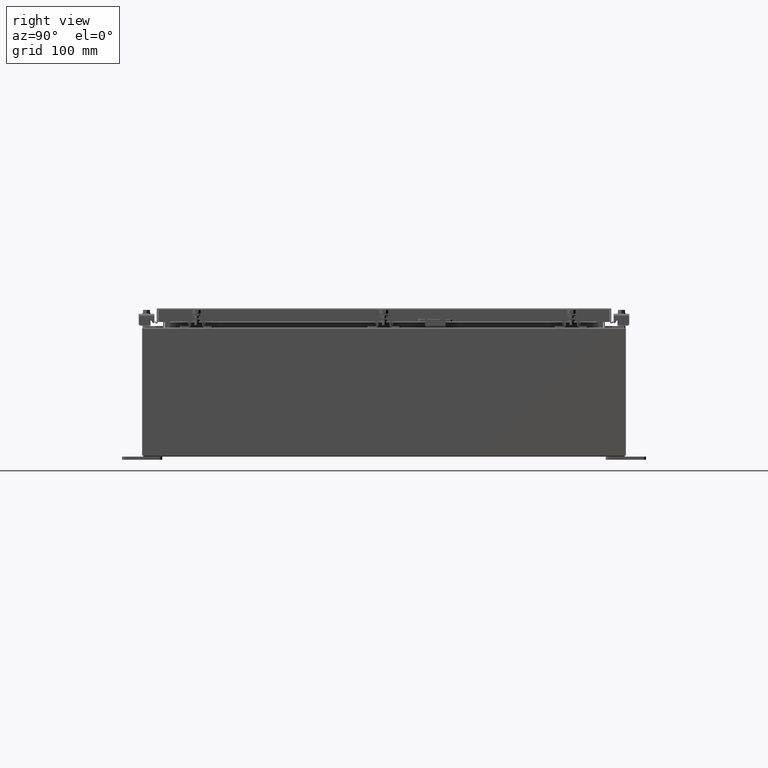
[diagram: clean part render]
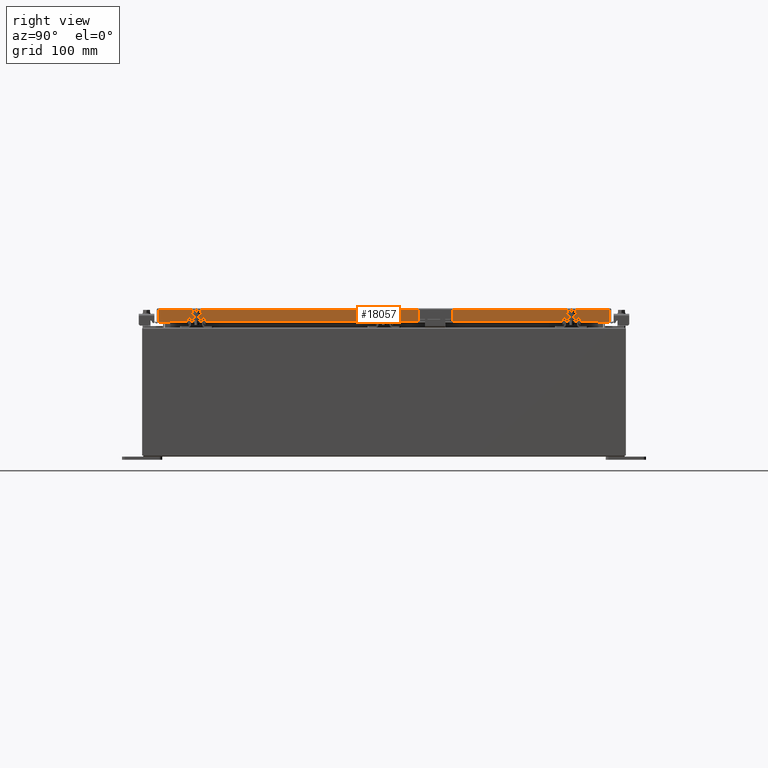
[diagram: same view with one face highlighted and labeled with its STEP entity id]
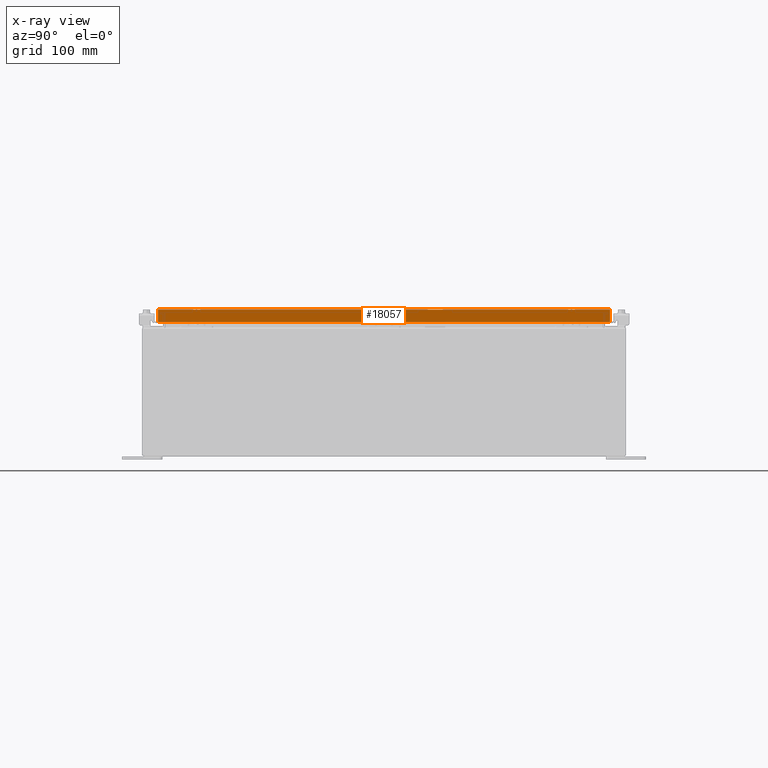
[diagram: x-ray of the same camera — body ghosted, the highlighted face saturated]
A machine part, right view. The second image highlights one B-rep face of the part: STEP entity #18057.
The next image is the same camera in x-ray: the body ghosted, the highlighted face saturated — about 0% of this face is hidden behind the body in this view.
In plain terms, the highlighted planar face has unit normal (1, 0, 0).
Its self-contained STEP definition (entity closure, byte-faithful):
#144 = VERTEX_POINT ( 'NONE', #28804 ) ;
#992 = CARTESIAN_POINT ( 'NONE',  ( 14.07800000000000300, 0.0000000000000000000, -0.08770000000000007000 ) ) ;
#2923 = VECTOR ( 'NONE', #9968, 39.37007874015748100 ) ;
#3138 = ORIENTED_EDGE ( 'NONE', *, *, #10879, .F. ) ;
#3378 = ORIENTED_EDGE ( 'NONE', *, *, #14124, .F. ) ;
#3548 = CARTESIAN_POINT ( 'NONE',  ( 14.07800000000000500, 14.00515786437626900, -0.8499999999999996400 ) ) ;
#3759 = LINE ( 'NONE', #13961, #28438 ) ;
#4215 = DIRECTION ( 'NONE',  ( 1.000000000000000000, 0.0000000000000000000, 2.818880942772360100E-015 ) ) ;
#6713 = ORIENTED_EDGE ( 'NONE', *, *, #36869, .F. ) ;
#6902 = EDGE_LOOP ( 'NONE', ( #3378, #6713, #9789, #3138, #21881, #18912 ) ) ;
#8505 = DIRECTION ( 'NONE',  ( -2.818880942772360100E-015, -6.982962677686265900E-015, 1.000000000000000000 ) ) ;
#9153 = DIRECTION ( 'NONE',  ( 0.0000000000000000000, -1.000000000000000000, 0.0000000000000000000 ) ) ;
#9169 = EDGE_CURVE ( 'NONE', #24033, #16392, #25756, .T. ) ;
#9789 = ORIENTED_EDGE ( 'NONE', *, *, #26966, .F. ) ;
#9802 = PLANE ( 'NONE',  #17730 ) ;
#9968 = DIRECTION ( 'NONE',  ( 0.0000000000000000000, -1.000000000000000000, 0.0000000000000000000 ) ) ;
#10707 = VECTOR ( 'NONE', #9153, 39.37007874015748100 ) ;
#10879 = EDGE_CURVE ( 'NONE', #20256, #22431, #31206, .T. ) ;
#13961 = CARTESIAN_POINT ( 'NONE',  ( 14.07799999999999400, 13.25515786437626700, -0.8500000000000013100 ) ) ;
#14064 = EDGE_CURVE ( 'NONE', #20256, #24033, #19903, .T. ) ;
#14124 = EDGE_CURVE ( 'NONE', #144, #16392, #32939, .T. ) ;
#14340 = CARTESIAN_POINT ( 'NONE',  ( 14.07799999999999400, -13.25515786437626700, -0.8500000000000013100 ) ) ;
#15754 = CARTESIAN_POINT ( 'NONE',  ( 14.07800000000000500, -14.09400000000000300, -0.8499999999999996400 ) ) ;
#16392 = VERTEX_POINT ( 'NONE', #25957 ) ;
#17114 = VECTOR ( 'NONE', #8505, 39.37007874015748100 ) ;
#17730 = AXIS2_PLACEMENT_3D ( 'NONE', #30912, #4215, #25069 ) ;
#18057 = ADVANCED_FACE ( 'NONE', ( #28502 ), #9802, .T. ) ;
#18644 = LINE ( 'NONE', #33008, #10707 ) ;
#18912 = ORIENTED_EDGE ( 'NONE', *, *, #9169, .T. ) ;
#19903 = LINE ( 'NONE', #31943, #34798 ) ;
#20256 = VERTEX_POINT ( 'NONE', #3548 ) ;
#21881 = ORIENTED_EDGE ( 'NONE', *, *, #14064, .T. ) ;
#22381 = VECTOR ( 'NONE', #30306, 39.37007874015748100 ) ;
#22431 = VERTEX_POINT ( 'NONE', #35163 ) ;
#24033 = VERTEX_POINT ( 'NONE', #24616 ) ;
#24616 = CARTESIAN_POINT ( 'NONE',  ( 14.07800000000000300, 14.00515786437626200, -0.08770000000000007000 ) ) ;
#25069 = DIRECTION ( 'NONE',  ( 2.818880942772360100E-015, 0.0000000000000000000, -1.000000000000000000 ) ) ;
#25466 = VERTEX_POINT ( 'NONE', #14340 ) ;
#25756 = LINE ( 'NONE', #992, #2923 ) ;
#25957 = CARTESIAN_POINT ( 'NONE',  ( 14.07800000000000300, -14.00515786437627200, -0.08770000000000007000 ) ) ;
#26966 = EDGE_CURVE ( 'NONE', #22431, #25466, #3759, .T. ) ;
#28438 = VECTOR ( 'NONE', #34791, 39.37007874015748100 ) ;
#28502 = FACE_OUTER_BOUND ( 'NONE', #6902, .T. ) ;
#28804 = CARTESIAN_POINT ( 'NONE',  ( 14.07800000000000500, -14.00515786437626900, -0.8499999999999996400 ) ) ;
#30306 = DIRECTION ( 'NONE',  ( 0.0000000000000000000, -1.000000000000000000, 0.0000000000000000000 ) ) ;
#30912 = CARTESIAN_POINT ( 'NONE',  ( 14.07800000000000300, 0.0000000000000000000, 3.994501956836086900E-014 ) ) ;
#31206 = LINE ( 'NONE', #15754, #22381 ) ;
#31943 = CARTESIAN_POINT ( 'NONE',  ( 14.07800000000000300, 14.00515786437626400, 1.377425142304046000E-013 ) ) ;
#32209 = CARTESIAN_POINT ( 'NONE',  ( 14.07800000000000300, -14.00515786437627200, -0.07469999999999978000 ) ) ;
#32939 = LINE ( 'NONE', #32209, #17114 ) ;
#33008 = CARTESIAN_POINT ( 'NONE',  ( 14.07800000000000500, -14.09400000000000300, -0.8499999999999996400 ) ) ;
#34791 = DIRECTION ( 'NONE',  ( 0.0000000000000000000, -1.000000000000000000, 0.0000000000000000000 ) ) ;
#34798 = VECTOR ( 'NONE', #37918, 39.37007874015748100 ) ;
#35163 = CARTESIAN_POINT ( 'NONE',  ( 14.07799999999999400, 13.25515786437626200, -0.8500000000000013100 ) ) ;
#36869 = EDGE_CURVE ( 'NONE', #25466, #144, #18644, .T. ) ;
#37918 = DIRECTION ( 'NONE',  ( -2.818880942772360100E-015, -6.982962677686265900E-015, 1.000000000000000000 ) ) ;